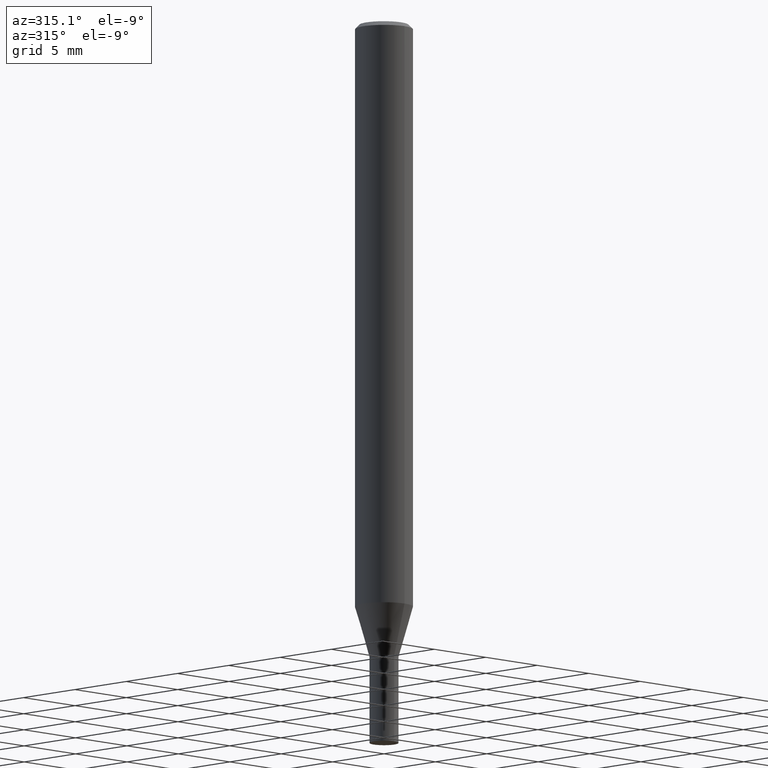
[diagram: clean part render]
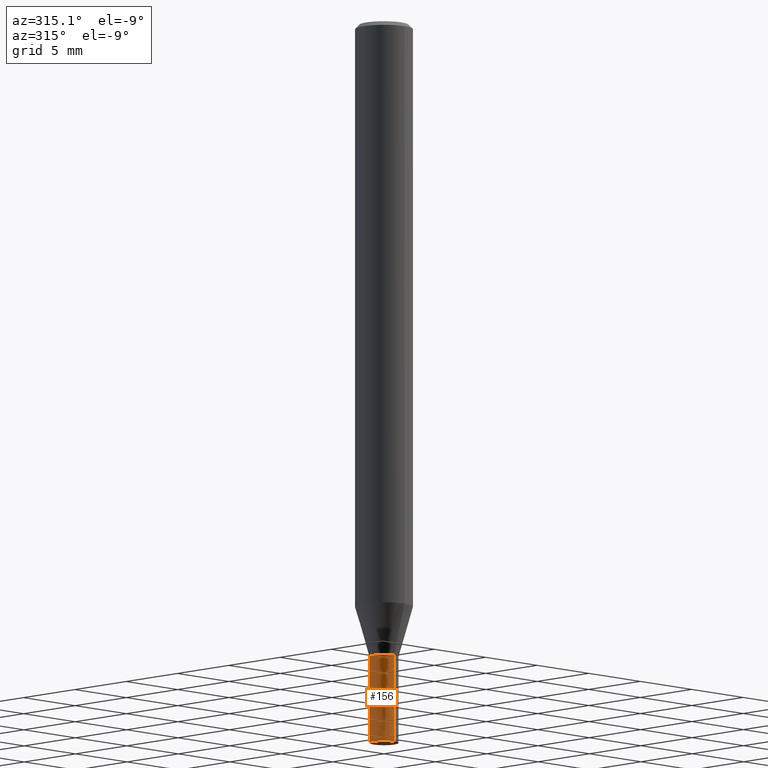
[diagram: same view with one face highlighted and labeled with its STEP entity id]
A machine part, auxiliary view. The second image highlights one B-rep face of the part: STEP entity #156.
In plain terms, the highlighted conical surface has half-angle 0.001 deg.
Its self-contained STEP definition (entity closure, byte-faithful):
#94=VERTEX_POINT('',#217);
#96=EDGE_CURVE('',#118,#94,#219,.T.);
#104=VERTEX_POINT('',#229);
#110=EDGE_CURVE('',#94,#104,#236,.T.);
#118=VERTEX_POINT('',#245);
#156=ADVANCED_FACE('',(#285),#286,.T.);
#164=EDGE_CURVE('',#118,#170,#294,.T.);
#170=VERTEX_POINT('',#300);
#184=EDGE_CURVE('',#104,#170,#319,.T.);
#217=CARTESIAN_POINT('',(1.224483893187E-016,-0.9999,-44.0));
#219=LINE('',#351,#352);
#229=CARTESIAN_POINT('',(0.0,0.9999,-44.0));
#236=CIRCLE('',#371,0.9999);
#245=CARTESIAN_POINT('',(1.22460635382238E-016,-1.0,-50.0));
#285=FACE_OUTER_BOUND('',#431,.T.);
#286=CONICAL_SURFACE('',#432,0.99995,1.66666666651216E-005);
#294=CIRCLE('',#445,1.0);
#300=CARTESIAN_POINT('',(0.0,1.0,-50.0));
#319=LINE('',#473,#474);
#351=CARTESIAN_POINT('',(1.22454512350469E-016,-0.99995,-47.0));
#352=VECTOR('',#497,1.0);
#371=AXIS2_PLACEMENT_3D('',#521,#522,#523);
#431=EDGE_LOOP('',(#566,#567,#568,#569));
#432=AXIS2_PLACEMENT_3D('',#570,#571,#572);
#445=AXIS2_PLACEMENT_3D('',#580,#581,#582);
#473=CARTESIAN_POINT('',(-1.22454512350469E-016,0.99995,-47.0));
#474=VECTOR('',#623,1.0);
#497=DIRECTION('',(-2.04101058942026E-021,1.666666666435E-005,0.999999999861111));
#521=CARTESIAN_POINT('',(0.0,0.0,-44.0));
#522=DIRECTION('',(0.0,0.0,-1.0));
#523=DIRECTION('',(0.0,1.0,0.0));
#566=ORIENTED_EDGE('',*,*,#184,.T.);
#567=ORIENTED_EDGE('',*,*,#164,.F.);
#568=ORIENTED_EDGE('',*,*,#96,.T.);
#569=ORIENTED_EDGE('',*,*,#110,.T.);
#570=CARTESIAN_POINT('',(0.0,0.0,-47.0));
#571=DIRECTION('',(0.0,-0.0,-1.0));
#572=DIRECTION('',(0.0,1.0,0.0));
#580=CARTESIAN_POINT('',(0.0,0.0,-50.0));
#581=DIRECTION('',(0.0,0.0,-1.0));
#582=DIRECTION('',(0.0,1.0,0.0));
#623=DIRECTION('',(-2.04101058942026E-021,1.666666666435E-005,-0.999999999861111));